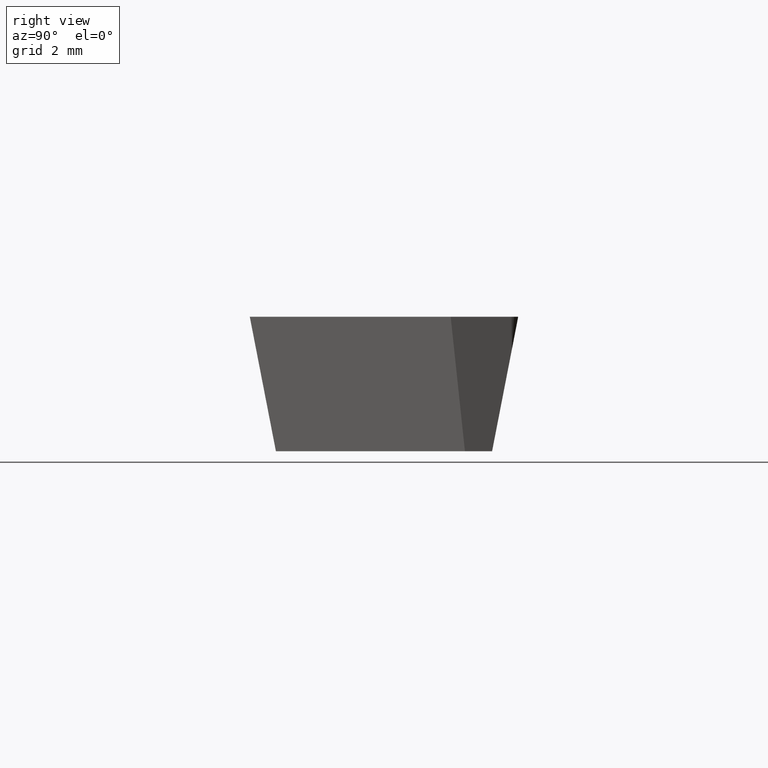
[diagram: clean part render]
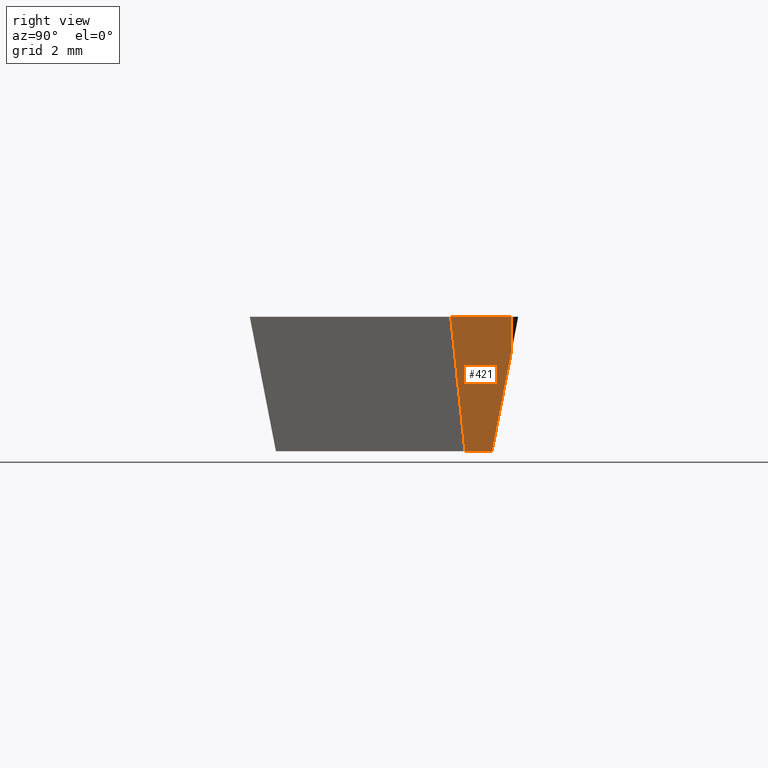
[diagram: same view with one face highlighted and labeled with its STEP entity id]
A machine part, right view. The second image highlights one B-rep face of the part: STEP entity #421.
In plain terms, the highlighted planar face has unit normal (0.9792, -0.0685, -0.1908).
Its self-contained STEP definition (entity closure, byte-faithful):
#64 = CARTESIAN_POINT ( 'NONE',  ( 7.237137390861797700, 2.556870616942054300, -3.180000000000000200 ) ) ;
#65 = VECTOR ( 'NONE', #74, 1000.000000000000000 ) ;
#74 = DIRECTION ( 'NONE',  ( 0.1832382521941806600, -0.1036712150141735900, 0.9775868360970839700 ) ) ;
#82 = CARTESIAN_POINT ( 'NONE',  ( 7.788289079147451100, 1.577459403657729400, 3.148184459698170000E-018 ) ) ;
#103 = DIRECTION ( 'NONE',  ( 0.06975647374412544100, 0.9975640502598242000, -0.0000000000000000000 ) ) ;
#106 = CARTESIAN_POINT ( 'NONE',  ( 7.900000000000000400, 3.175000000000000700, 0.0000000000000000000 ) ) ;
#108 = DIRECTION ( 'NONE',  ( 0.1903441942538345300, -0.01331016267612693300, 0.9816271834476638600 ) ) ;
#109 = CARTESIAN_POINT ( 'NONE',  ( 7.739144693496297300, 3.025000000000000800, -0.7716831023955452700 ) ) ;
#115 = CARTESIAN_POINT ( 'NONE',  ( 7.788289079147451100, 1.577459403657729400, 0.0000000000000000000 ) ) ;
#165 = CARTESIAN_POINT ( 'NONE',  ( 7.888779301035271800, 3.014536528938381600, -1.291725244562808000E-016 ) ) ;
#176 = VERTEX_POINT ( 'NONE', #192 ) ;
#181 = DIRECTION ( 'NONE',  ( -0.1912579077465619300, 0.0000000000000000000, -0.9815398171874677400 ) ) ;
#182 = DIRECTION ( 'NONE',  ( 0.9792359889651950400, -0.06847485084868677700, -0.1908089953765452500 ) ) ;
#187 = LINE ( 'NONE', #82, #65 ) ;
#189 = CARTESIAN_POINT ( 'NONE',  ( 7.900000000000000400, 3.175000000000000700, 0.0000000000000000000 ) ) ;
#190 = VECTOR ( 'NONE', #103, 1000.000000000000200 ) ;
#191 = PLANE ( 'NONE',  #364 ) ;
#192 = CARTESIAN_POINT ( 'NONE',  ( 7.192231910145610000, 1.914692324122640600, -3.180000000000000200 ) ) ;
#193 = DIRECTION ( 'NONE',  ( 0.2004640746510997800, 0.1869357738407769500, 0.9617011860410842300 ) ) ;
#200 = DIRECTION ( 'NONE',  ( 0.06975647374412545500, 0.9975640502598242000, 0.0000000000000000000 ) ) ;
#216 = EDGE_LOOP ( 'NONE', ( #242, #246, #247, #249, #250 ) ) ;
#224 = VECTOR ( 'NONE', #108, 1000.000000000000100 ) ;
#226 = CARTESIAN_POINT ( 'NONE',  ( 7.283376349052109500, 3.218118526079754900, -3.180000000000000200 ) ) ;
#228 = LINE ( 'NONE', #106, #190 ) ;
#232 = VERTEX_POINT ( 'NONE', #318 ) ;
#242 = ORIENTED_EDGE ( 'NONE', *, *, #418, .T. ) ;
#246 = ORIENTED_EDGE ( 'NONE', *, *, #420, .T. ) ;
#247 = ORIENTED_EDGE ( 'NONE', *, *, #443, .T. ) ;
#249 = ORIENTED_EDGE ( 'NONE', *, *, #446, .F. ) ;
#250 = ORIENTED_EDGE ( 'NONE', *, *, #449, .F. ) ;
#273 = CARTESIAN_POINT ( 'NONE',  ( 7.900000000000000400, 3.175000000000000700, 0.0000000000000000000 ) ) ;
#302 = LINE ( 'NONE', #165, #224 ) ;
#318 = CARTESIAN_POINT ( 'NONE',  ( 7.888779301035271800, 3.014536528938381600, 0.0000000000000000000 ) ) ;
#325 = FACE_OUTER_BOUND ( 'NONE', #216, .T. ) ;
#332 = VERTEX_POINT ( 'NONE', #115 ) ;
#341 = VECTOR ( 'NONE', #193, 1000.000000000000100 ) ;
#343 = VERTEX_POINT ( 'NONE', #109 ) ;
#347 = VECTOR ( 'NONE', #200, 1000.000000000000100 ) ;
#357 = VERTEX_POINT ( 'NONE', #64 ) ;
#364 = AXIS2_PLACEMENT_3D ( 'NONE', #189, #182, #181 ) ;
#365 = LINE ( 'NONE', #226, #347 ) ;
#382 = LINE ( 'NONE', #273, #341 ) ;
#418 = EDGE_CURVE ( 'NONE', #176, #357, #365, .T. ) ;
#420 = EDGE_CURVE ( 'NONE', #357, #343, #382, .T. ) ;
#421 = ADVANCED_FACE ( 'NONE', ( #325 ), #191, .T. ) ;
#443 = EDGE_CURVE ( 'NONE', #343, #232, #302, .T. ) ;
#446 = EDGE_CURVE ( 'NONE', #332, #232, #228, .T. ) ;
#449 = EDGE_CURVE ( 'NONE', #176, #332, #187, .T. ) ;